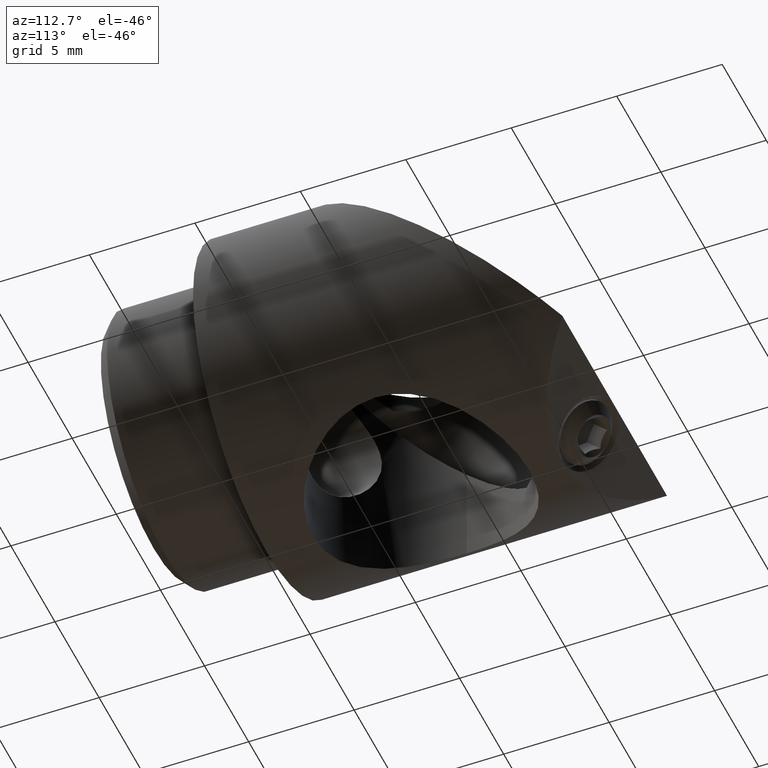
[diagram: clean part render]
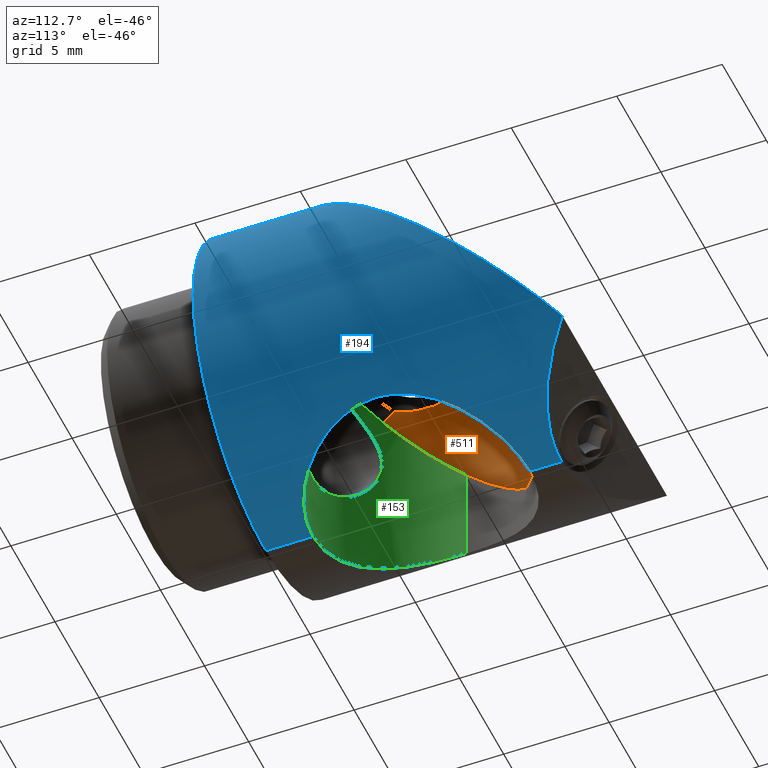
[diagram: same view with three faces highlighted in distinct colors, each labeled with its STEP entity id]
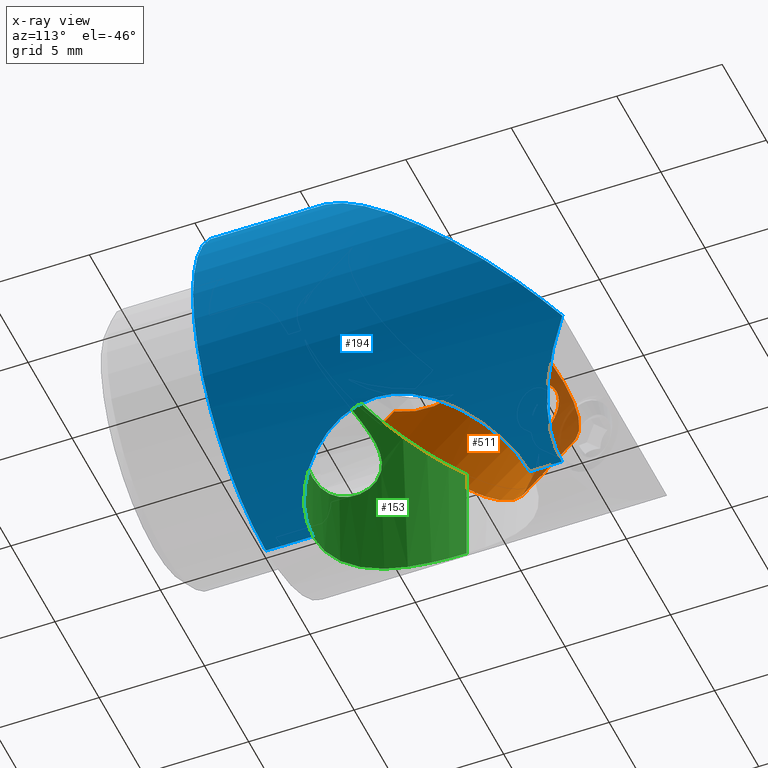
[diagram: x-ray of the same camera — body ghosted, the three highlighted faces saturated]
A machine part, auxiliary view with three faces highlighted in distinct colors.
The next image is the same camera in x-ray (body ghosted, the three faces saturated) — at least one of them is partly hidden behind the body in this view.
Their STEP definitions:

[orange] entity #511 — the highlighted cylindrical surface (partial cylindrical patch) has radius 6.388 mm, axis along (-0, 0.7071, 0.7071).
#10 = CARTESIAN_POINT ( 'NONE',  ( 1.640175163913572431, 12.27249593161689667, -4.940702873510235626 ) ) ;
#13 = CARTESIAN_POINT ( 'NONE',  ( -1.367120341127874283, 12.33214604321978491, -4.948413358188406441 ) ) ;
#30 = VERTEX_POINT ( 'NONE', #1424 ) ;
#44 = VECTOR ( 'NONE', #294, 1000.000000000000000 ) ;
#51 = LINE ( 'NONE', #447, #1079 ) ;
#53 = CARTESIAN_POINT ( 'NONE',  ( 4.161951651678083230, 4.343790427668178467, 2.749807714130376723 ) ) ;
#61 = EDGE_CURVE ( 'NONE', #610, #155, #923, .T. ) ;
#64 = CARTESIAN_POINT ( 'NONE',  ( -1.253909884520350237, 12.65672326343202769, -4.648929518578366782 ) ) ;
#115 = CIRCLE ( 'NONE', #769, 6.387999999999999012 ) ;
#133 = CARTESIAN_POINT ( 'NONE',  ( 3.892938429126236777, 10.72763987319167711, -4.882387341497614663 ) ) ;
#135 = CARTESIAN_POINT ( 'NONE',  ( 5.108716719711978271, 6.768835259132526261, 3.745000000000000107 ) ) ;
#146 = ORIENTED_EDGE ( 'NONE', *, *, #913, .F. ) ;
#151 = B_SPLINE_CURVE_WITH_KNOTS ( 'NONE', 3,
 ( #133, #1444, #651, #540, #10, #414 ),
 .UNSPECIFIED., .F., .F.,
 ( 4, 2, 4 ),
 ( 5.553824967135426632E-18, 0.001647709144781099458, 0.003295418289562193279 ),
 .UNSPECIFIED. ) ;
#155 = VERTEX_POINT ( 'NONE', #672 ) ;
#176 = VECTOR ( 'NONE', #988, 1000.000000000000000 ) ;
#179 = CARTESIAN_POINT ( 'NONE',  ( -1.200186646161037762, 12.51136629610085649, -4.810374407719964829 ) ) ;
#181 = CARTESIAN_POINT ( 'NONE',  ( 0.8048097720602422900, 13.54000422560821093, -3.873318973076294025 ) ) ;
#183 = CARTESIAN_POINT ( 'NONE',  ( 5.108716719711978271, 6.768835259132526261, 3.745000000000000107 ) ) ;
#186 = CARTESIAN_POINT ( 'NONE',  ( -4.896850738249568735, 5.776427042986947313, 3.132758512196308853 ) ) ;
#188 = CARTESIAN_POINT ( 'NONE',  ( 0.5254475664978317528, 13.67171505592000180, -3.780045286826354545 ) ) ;
#191 = CARTESIAN_POINT ( 'NONE',  ( 4.513600299552082085, 5.766081610168910743, 3.745000000000000107 ) ) ;
#193 = B_SPLINE_CURVE_WITH_KNOTS ( 'NONE', 3,
 ( #1125, #437, #1619, #212, #188, #181, #1481, #1386, #698, #1641, #454, #730, #461, #831 ),
 .UNSPECIFIED., .F., .F.,
 ( 4, 2, 2, 2, 2, 2, 4 ),
 ( 1.624226609785692117E-19, 0.0003224702730896096764, 0.0006449405461792192444, 0.001289881092358441091, 0.001612351365448052827, 0.001934821638537664781, 0.002579762184716888687 ),
 .UNSPECIFIED. ) ;
#197 = DIRECTION ( 'NONE',  ( 0.000000000000000000, 0.7071067811865511255, 0.7071067811865440200 ) ) ;
#212 = CARTESIAN_POINT ( 'NONE',  ( 0.4241497211968454639, 13.70653400599343819, -3.756140281013160998 ) ) ;
#246 = CARTESIAN_POINT ( 'NONE',  ( -4.161951651678085895, 6.194491356768897283, 4.600508643231069783 ) ) ;
#257 = CARTESIAN_POINT ( 'NONE',  ( -4.161951651678085895, 5.338982713537819613, 3.745000000000000107 ) ) ;
#265 = CARTESIAN_POINT ( 'NONE',  ( 3.892938429126236777, 10.72763987319167711, -4.882387341497614663 ) ) ;
#272 = VERTEX_POINT ( 'NONE', #1104 ) ;
#287 = EDGE_CURVE ( 'NONE', #610, #1521, #1445, .T. ) ;
#294 = DIRECTION ( 'NONE',  ( -0.000000000000000000, 0.7071067811865511255, 0.7071067811865440200 ) ) ;
#301 = ORIENTED_EDGE ( 'NONE', *, *, #713, .F. ) ;
#303 = EDGE_CURVE ( 'NONE', #837, #586, #115, .T. ) ;
#309 = CARTESIAN_POINT ( 'NONE',  ( -5.108716719711980048, 6.768835259132539584, 3.745000000000000107 ) ) ;
#312 = VECTOR ( 'NONE', #1199, 1000.000000000000000 ) ;
#315 = CARTESIAN_POINT ( 'NONE',  ( -4.958181710620769067, 5.982317699541248146, 3.232070925650737170 ) ) ;
#350 = CARTESIAN_POINT ( 'NONE',  ( 4.161951651678083230, 3.719617622615964958, 2.125634909078168988 ) ) ;
#360 = CARTESIAN_POINT ( 'NONE',  ( 4.739740051454058190, 5.355834389575567123, 2.967422409816603768 ) ) ;
#372 = CARTESIAN_POINT ( 'NONE',  ( -4.830433706001754146, 6.244579463582841328, 3.745000000000000107 ) ) ;
#381 = CARTESIAN_POINT ( 'NONE',  ( 5.086708019740235898, 6.580551849496817596, 3.598178655759059819 ) ) ;
#400 = CYLINDRICAL_SURFACE ( 'NONE', #1159, 6.387999999999999012 ) ;
#414 = CARTESIAN_POINT ( 'NONE',  ( 1.097733773728120088, 12.39099480716314972, -4.956020259173528508 ) ) ;
#428 = CARTESIAN_POINT ( 'NONE',  ( 4.161951651678082342, 6.194491356768891954, 4.600508643231070671 ) ) ;
#437 = CARTESIAN_POINT ( 'NONE',  ( 0.1090576367608548369, 13.76484852452993835, -3.716553285463090273 ) ) ;
#447 = CARTESIAN_POINT ( 'NONE',  ( -4.161951651678085895, 3.719617622615968511, 2.125634909078165435 ) ) ;
#451 =( BOUNDED_CURVE ( )  B_SPLINE_CURVE ( 3, ( #257, #1162, #372, #1008 ),
 .UNSPECIFIED., .F., .F. ) 
 B_SPLINE_CURVE_WITH_KNOTS ( ( 4, 4 ),
 ( 3.851187623086043565, 4.068448822386908859 ),
 .UNSPECIFIED. ) 
 CURVE ( )  GEOMETRIC_REPRESENTATION_ITEM ( )  RATIONAL_B_SPLINE_CURVE ( ( 1.000000000000000000, 0.9960703309277840756, 0.9960703309277840756, 1.000000000000000000 ) ) 
 REPRESENTATION_ITEM ( '' )  );
#452 = CARTESIAN_POINT ( 'NONE',  ( -0.2180226796108265253, 13.76484852452993302, -3.716553285463089384 ) ) ;
#453 = ORIENTED_EDGE ( 'NONE', *, *, #287, .T. ) ;
#454 = CARTESIAN_POINT ( 'NONE',  ( 1.247656084778585805, 12.88730795460118905, -4.420109232909160468 ) ) ;
#461 = CARTESIAN_POINT ( 'NONE',  ( 1.200821522805505692, 12.51211221024822784, -4.809471874220849763 ) ) ;
#474 = EDGE_CURVE ( 'NONE', #1093, #667, #451, .T. ) ;
#476 = VERTEX_POINT ( 'NONE', #246 ) ;
#486 = CARTESIAN_POINT ( 'NONE',  ( 5.108716719711978271, 6.768835259132526261, 3.745000000000000107 ) ) ;
#511 = ADVANCED_FACE ( 'NONE', ( #670 ), #400, .F. ) ;
#527 = CARTESIAN_POINT ( 'NONE',  ( -3.710979667386285819, 10.93835675031544241, -4.869462360018762759 ) ) ;
#529 = DIRECTION ( 'NONE',  ( 0.000000000000000000, 0.7071067811865511255, 0.7071067811865440200 ) ) ;
#531 = CARTESIAN_POINT ( 'NONE',  ( 4.646363924258364975, 5.147757095504806202, 2.903881556768844519 ) ) ;
#533 = ORIENTED_EDGE ( 'NONE', *, *, #1494, .T. ) ;
#540 = CARTESIAN_POINT ( 'NONE',  ( 2.152567356997935555, 12.07035688233090553, -4.914930836176590212 ) ) ;
#541 = CARTESIAN_POINT ( 'NONE',  ( -2.141398041436715527, 12.05061637847345146, -4.916491907531206351 ) ) ;
#561 = CARTESIAN_POINT ( 'NONE',  ( 4.161951651678083230, 5.338982713537813396, 3.745000000000000107 ) ) ;
#563 = CARTESIAN_POINT ( 'NONE',  ( 4.428049839703702695, 4.738896287336016755, 2.806544785728690261 ) ) ;
#575 = CARTESIAN_POINT ( 'NONE',  ( -4.426632995662383330, 4.736513237974952162, 2.806091152410513878 ) ) ;
#584 = CARTESIAN_POINT ( 'NONE',  ( -5.086695192232864038, 6.580442110759808116, 3.598093082692386702 ) ) ;
#586 = VERTEX_POINT ( 'NONE', #1207 ) ;
#595 = CARTESIAN_POINT ( 'NONE',  ( 2.649184241953760576E-15, 9.621202786776814619, 1.173797213223117808 ) ) ;
#603 = CARTESIAN_POINT ( 'NONE',  ( 4.161951651678083230, 3.719617622615964958, 2.125634909078168988 ) ) ;
#610 = VERTEX_POINT ( 'NONE', #135 ) ;
#625 = CARTESIAN_POINT ( 'NONE',  ( -4.161951651678085895, 5.338982713537819613, 3.745000000000000107 ) ) ;
#641 = EDGE_CURVE ( 'NONE', #1245, #1181, #1621, .T. ) ;
#648 = CARTESIAN_POINT ( 'NONE',  ( 4.896733116203749070, 5.776060905139988044, 3.132592310715894612 ) ) ;
#651 = CARTESIAN_POINT ( 'NONE',  ( 3.107856827162439828, 11.50190931290896046, -4.872978575835780646 ) ) ;
#658 = ORIENTED_EDGE ( 'NONE', *, *, #693, .T. ) ;
#665 = LINE ( 'NONE', #928, #312 ) ;
#666 = CARTESIAN_POINT ( 'NONE',  ( 4.302291016803429180, 4.537054871612139273, 2.772621373288949531 ) ) ;
#667 = VERTEX_POINT ( 'NONE', #309 ) ;
#670 = FACE_OUTER_BOUND ( 'NONE', #1516, .T. ) ;
#672 = CARTESIAN_POINT ( 'NONE',  ( 4.161951651678083230, 4.343790427668178467, 2.749807714130376723 ) ) ;
#687 = EDGE_CURVE ( 'NONE', #871, #476, #741, .T. ) ;
#689 = ORIENTED_EDGE ( 'NONE', *, *, #303, .F. ) ;
#693 = EDGE_CURVE ( 'NONE', #1185, #30, #193, .T. ) ;
#698 = CARTESIAN_POINT ( 'NONE',  ( 1.172025885608741103, 13.12099408406917611, -4.207156523315444652 ) ) ;
#701 = CARTESIAN_POINT ( 'NONE',  ( 2.649184241953760576E-15, 7.146329052623886291, -1.301076520929786318 ) ) ;
#709 = DIRECTION ( 'NONE',  ( 0.000000000000000000, 0.7071067811865511255, 0.7071067811865440200 ) ) ;
#711 = ORIENTED_EDGE ( 'NONE', *, *, #1056, .T. ) ;
#713 = EDGE_CURVE ( 'NONE', #1093, #476, #51, .T. ) ;
#730 = CARTESIAN_POINT ( 'NONE',  ( 1.253969873451666883, 12.65829690921597539, -4.647338959256609670 ) ) ;
#741 = CIRCLE ( 'NONE', #1592, 6.387999999999999012 ) ;
#745 = ORIENTED_EDGE ( 'NONE', *, *, #61, .F. ) ;
#769 = AXIS2_PLACEMENT_3D ( 'NONE', #701, #709, #1252 ) ;
#804 = CARTESIAN_POINT ( 'NONE',  ( -1.629690741564836731, 12.25223825372736641, -4.938434536719461754 ) ) ;
#819 = CARTESIAN_POINT ( 'NONE',  ( -1.097733773728121198, 12.39099480716315149, -4.956020259173525844 ) ) ;
#827 = CARTESIAN_POINT ( 'NONE',  ( -4.739910310771103141, 5.356238923601027935, 2.967559161521424738 ) ) ;
#831 = CARTESIAN_POINT ( 'NONE',  ( 1.097733773728120088, 12.39099480716314972, -4.956020259173528508 ) ) ;
#837 = VERTEX_POINT ( 'NONE', #933 ) ;
#846 = CARTESIAN_POINT ( 'NONE',  ( 4.830433706001752370, 6.244579463582829781, 3.745000000000000107 ) ) ;
#871 = VERTEX_POINT ( 'NONE', #428 ) ;
#906 = B_SPLINE_CURVE_WITH_KNOTS ( 'NONE', 3,
 ( #1567, #13, #804, #541, #1070, #915, #1055, #1589, #527, #1196 ),
 .UNSPECIFIED., .F., .F.,
 ( 4, 2, 2, 2, 4 ),
 ( 0.005495432455594205338, 0.006319065893105949884, 0.007142699330617693562, 0.007966332768129438108, 0.008789966205641182653 ),
 .UNSPECIFIED. ) ;
#911 = CARTESIAN_POINT ( 'NONE',  ( 4.958905199174284739, 5.984932966629985529, 3.233421385622098132 ) ) ;
#913 = EDGE_CURVE ( 'NONE', #272, #837, #906, .T. ) ;
#915 = CARTESIAN_POINT ( 'NONE',  ( -2.866959145208740178, 11.64528621078993709, -4.883556423912430944 ) ) ;
#923 = B_SPLINE_CURVE_WITH_KNOTS ( 'NONE', 3,
 ( #486, #381, #1536, #911, #648, #360, #531, #563, #666, #53 ),
 .UNSPECIFIED., .F., .F.,
 ( 4, 2, 2, 2, 4 ),
 ( 2.676552404054766205E-17, 0.0007098968692407624931, 0.001419793738481498098, 0.002129690607722234136, 0.002839587476962969741 ),
 .UNSPECIFIED. ) ;
#928 = CARTESIAN_POINT ( 'NONE',  ( 4.161951651678083230, 3.719617622615964958, 2.125634909078168988 ) ) ;
#933 = CARTESIAN_POINT ( 'NONE',  ( -3.892938429126241662, 10.72763987319167178, -4.882387341497609334 ) ) ;
#957 = CARTESIAN_POINT ( 'NONE',  ( 2.649184241953760576E-15, 7.146329052623886291, -1.301076520929786318 ) ) ;
#968 = ORIENTED_EDGE ( 'NONE', *, *, #1205, .F. ) ;
#969 = AXIS2_PLACEMENT_3D ( 'NONE', #957, #529, #1350 ) ;
#988 = DIRECTION ( 'NONE',  ( -0.000000000000000000, 0.7071067811865511255, 0.7071067811865440200 ) ) ;
#992 = CARTESIAN_POINT ( 'NONE',  ( -5.053063622555008294, 6.383813352489271509, 3.464322954883077177 ) ) ;
#997 = LINE ( 'NONE', #603, #176 ) ;
#1008 = CARTESIAN_POINT ( 'NONE',  ( -5.108716719711980048, 6.768835259132539584, 3.745000000000000107 ) ) ;
#1041 = EDGE_CURVE ( 'NONE', #1611, #667, #1681, .T. ) ;
#1046 = DIRECTION ( 'NONE',  ( -0.000000000000000000, 0.7071067811865511255, 0.7071067811865440200 ) ) ;
#1055 = CARTESIAN_POINT ( 'NONE',  ( -3.090805819065892024, 11.48644294405140620, -4.874756510101351914 ) ) ;
#1056 = EDGE_CURVE ( 'NONE', #272, #1185, #1561, .T. ) ;
#1070 = CARTESIAN_POINT ( 'NONE',  ( -2.392636090812561900, 11.92747319964658992, -4.904389394357606236 ) ) ;
#1079 = VECTOR ( 'NONE', #1635, 1000.000000000000000 ) ;
#1092 = CARTESIAN_POINT ( 'NONE',  ( -5.108716719711980048, 6.768835259132539584, 3.745000000000000107 ) ) ;
#1093 = VERTEX_POINT ( 'NONE', #625 ) ;
#1100 = CARTESIAN_POINT ( 'NONE',  ( -0.9650360543801383972, 13.41172396143105949, -3.967378980629855612 ) ) ;
#1104 = CARTESIAN_POINT ( 'NONE',  ( -1.097733773728121198, 12.39099480716315149, -4.956020259173525844 ) ) ;
#1109 = CARTESIAN_POINT ( 'NONE',  ( -1.245634576152562234, 12.96437046816346417, -4.343617061927455225 ) ) ;
#1116 = CARTESIAN_POINT ( 'NONE',  ( -1.184214107843533315, 13.12443224671445918, -4.201772848659433457 ) ) ;
#1125 = CARTESIAN_POINT ( 'NONE',  ( -7.194117245937691693E-31, 13.76484852452993302, -3.716553285463090717 ) ) ;
#1159 = AXIS2_PLACEMENT_3D ( 'NONE', #1325, #1046, #1583 ) ;
#1162 = CARTESIAN_POINT ( 'NONE',  ( -4.513600299552083861, 5.766081610168920513, 3.745000000000000107 ) ) ;
#1179 = ORIENTED_EDGE ( 'NONE', *, *, #474, .T. ) ;
#1180 = EDGE_CURVE ( 'NONE', #1181, #30, #151, .T. ) ;
#1181 = VERTEX_POINT ( 'NONE', #265 ) ;
#1185 = VERTEX_POINT ( 'NONE', #1319 ) ;
#1196 = CARTESIAN_POINT ( 'NONE',  ( -3.892938429126241662, 10.72763987319167178, -4.882387341497609334 ) ) ;
#1199 = DIRECTION ( 'NONE',  ( -0.000000000000000000, 0.7071067811865511255, 0.7071067811865440200 ) ) ;
#1205 = EDGE_CURVE ( 'NONE', #586, #1611, #1402, .T. ) ;
#1207 = CARTESIAN_POINT ( 'NONE',  ( -4.161951651678085895, 3.719617622615968511, 2.125634909078165435 ) ) ;
#1232 = CARTESIAN_POINT ( 'NONE',  ( -0.8059642197614763637, 13.53935949443449260, -3.873781726735442632 ) ) ;
#1241 = ORIENTED_EDGE ( 'NONE', *, *, #1041, .F. ) ;
#1245 = VERTEX_POINT ( 'NONE', #350 ) ;
#1247 = CARTESIAN_POINT ( 'NONE',  ( -4.645131818174918159, 5.145182424932011500, 2.903156285615707155 ) ) ;
#1252 = DIRECTION ( 'NONE',  ( 0.000000000000000000, -0.7071067811865441310, 0.7071067811865510144 ) ) ;
#1254 = CARTESIAN_POINT ( 'NONE',  ( -7.194117245937691693E-31, 13.76484852452993302, -3.716553285463090717 ) ) ;
#1260 = ORIENTED_EDGE ( 'NONE', *, *, #641, .F. ) ;
#1318 = ORIENTED_EDGE ( 'NONE', *, *, #1180, .F. ) ;
#1319 = CARTESIAN_POINT ( 'NONE',  ( -7.194117245937691693E-31, 13.76484852452993302, -3.716553285463090717 ) ) ;
#1325 = CARTESIAN_POINT ( 'NONE',  ( 2.649184241953760576E-15, 7.146329052623886291, -1.301076520929786318 ) ) ;
#1350 = DIRECTION ( 'NONE',  ( 0.000000000000000000, -0.7071067811865441310, 0.7071067811865510144 ) ) ;
#1386 = CARTESIAN_POINT ( 'NONE',  ( 1.129535570175497883, 13.19618643040793238, -4.143219556453877850 ) ) ;
#1402 = LINE ( 'NONE', #1616, #44 ) ;
#1424 = CARTESIAN_POINT ( 'NONE',  ( 1.097733773728120088, 12.39099480716314972, -4.956020259173528508 ) ) ;
#1444 = CARTESIAN_POINT ( 'NONE',  ( 3.528822039943138922, 11.14930392335649678, -4.856523252616478104 ) ) ;
#1445 =( BOUNDED_CURVE ( )  B_SPLINE_CURVE ( 3, ( #183, #846, #191, #1642 ),
 .UNSPECIFIED., .F., .T. ) 
 B_SPLINE_CURVE_WITH_KNOTS ( ( 4, 4 ),
 ( 2.214736484792679594, 2.431997684093544443 ),
 .UNSPECIFIED. ) 
 CURVE ( )  GEOMETRIC_REPRESENTATION_ITEM ( )  RATIONAL_B_SPLINE_CURVE ( ( 1.000000000000000000, 0.9960703309277840756, 0.9960703309277840756, 1.000000000000000000 ) ) 
 REPRESENTATION_ITEM ( '' )  );
#1481 = CARTESIAN_POINT ( 'NONE',  ( 0.9637625398497225993, 13.41322591204235160, -3.966175506169188569 ) ) ;
#1490 = CARTESIAN_POINT ( 'NONE',  ( -4.302255698609288359, 4.537006234145790629, 2.772615631939895131 ) ) ;
#1494 = EDGE_CURVE ( 'NONE', #1245, #155, #665, .T. ) ;
#1497 = CARTESIAN_POINT ( 'NONE',  ( -4.161951651678089448, 4.343790427668187348, 2.749807714130370506 ) ) ;
#1516 = EDGE_LOOP ( 'NONE', ( #146, #711, #658, #1318, #1260, #533, #745, #453, #1607, #1562, #301, #1179, #1241, #968, #689 ) ) ;
#1517 = DIRECTION ( 'NONE',  ( 0.000000000000000000, -0.7071067811865441310, 0.7071067811865510144 ) ) ;
#1521 = VERTEX_POINT ( 'NONE', #561 ) ;
#1536 = CARTESIAN_POINT ( 'NONE',  ( 5.053524029950334118, 6.386213388653547263, 3.465875724990594264 ) ) ;
#1561 = B_SPLINE_CURVE_WITH_KNOTS ( 'NONE', 3,
 ( #819, #179, #64, #1109, #1116, #1100, #1232, #1617, #452, #1254 ),
 .UNSPECIFIED., .F., .F.,
 ( 4, 2, 2, 2, 4 ),
 ( 0.005255394336036671617, 0.005900061093193723419, 0.006544727850350776088, 0.007189394607507827890, 0.007834061364664879692 ),
 .UNSPECIFIED. ) ;
#1562 = ORIENTED_EDGE ( 'NONE', *, *, #687, .T. ) ;
#1567 = CARTESIAN_POINT ( 'NONE',  ( -1.097733773728121198, 12.39099480716315149, -4.956020259173525844 ) ) ;
#1583 = DIRECTION ( 'NONE',  ( 0.000000000000000000, -0.7071067811865441310, 0.7071067811865510144 ) ) ;
#1589 = CARTESIAN_POINT ( 'NONE',  ( -3.512303129775163679, 11.13360632111771942, -4.867721958956972017 ) ) ;
#1592 = AXIS2_PLACEMENT_3D ( 'NONE', #595, #197, #1517 ) ;
#1594 = CARTESIAN_POINT ( 'NONE',  ( -4.161951651678089448, 4.343790427668187348, 2.749807714130370506 ) ) ;
#1607 = ORIENTED_EDGE ( 'NONE', *, *, #1688, .T. ) ;
#1611 = VERTEX_POINT ( 'NONE', #1594 ) ;
#1616 = CARTESIAN_POINT ( 'NONE',  ( -4.161951651678085895, 3.719617622615968511, 2.125634909078165435 ) ) ;
#1617 = CARTESIAN_POINT ( 'NONE',  ( -0.4322737891574366387, 13.71574382222228472, -3.748859270096484675 ) ) ;
#1619 = CARTESIAN_POINT ( 'NONE',  ( 0.2156632468653134072, 13.75295492762700178, -3.724503507103563926 ) ) ;
#1621 = CIRCLE ( 'NONE', #969, 6.387999999999999012 ) ;
#1635 = DIRECTION ( 'NONE',  ( -0.000000000000000000, 0.7071067811865511255, 0.7071067811865440200 ) ) ;
#1641 = CARTESIAN_POINT ( 'NONE',  ( 1.231503776480894041, 12.96596467662564933, -4.346073918436212935 ) ) ;
#1642 = CARTESIAN_POINT ( 'NONE',  ( 4.161951651678083230, 5.338982713537813396, 3.745000000000000107 ) ) ;
#1681 = B_SPLINE_CURVE_WITH_KNOTS ( 'NONE', 3,
 ( #1497, #1490, #575, #1247, #827, #186, #315, #992, #584, #1092 ),
 .UNSPECIFIED., .F., .F.,
 ( 4, 2, 2, 2, 4 ),
 ( 0.000000000000000000, 0.0007101406579237174062, 0.001420281315847434812, 0.002130421973771152219, 0.002840562631694869625 ),
 .UNSPECIFIED. ) ;
#1688 = EDGE_CURVE ( 'NONE', #1521, #871, #997, .T. ) ;

[blue] entity #194 — the highlighted cylindrical surface (partial cylindrical patch) has radius 8.255 mm, axis along (-0, -1, -0).
#36 = DIRECTION ( 'NONE',  ( 0.000000000000000000, 0.000000000000000000, -1.000000000000000000 ) ) ;
#67 = CARTESIAN_POINT ( 'NONE',  ( 0.3498619525357296034, 2.231489146023770243, -8.249390549262360040 ) ) ;
#79 = EDGE_LOOP ( 'NONE', ( #160, #834, #841, #697, #184, #813, #650, #761 ) ) ;
#81 = CARTESIAN_POINT ( 'NONE',  ( 1.689604822720227828, 2.495964798275995822, -8.086729199776112154 ) ) ;
#105 = CARTESIAN_POINT ( 'NONE',  ( 5.931774102239412372, 16.53600000000000136, -5.741000000000172854 ) ) ;
#123 = CARTESIAN_POINT ( 'NONE',  ( 5.134498506289006059, 7.715830933470377850, -6.463934493890955757 ) ) ;
#130 = CARTESIAN_POINT ( 'NONE',  ( -5.962151190919923481E-17, 12.50950000000000095, -8.255000000000000782 ) ) ;
#149 = DIRECTION ( 'NONE',  ( -0.000000000000000000, -1.000000000000000000, -0.000000000000000000 ) ) ;
#160 = ORIENTED_EDGE ( 'NONE', *, *, #649, .F. ) ;
#184 = ORIENTED_EDGE ( 'NONE', *, *, #1674, .F. ) ;
#189 = CARTESIAN_POINT ( 'NONE',  ( 0.6945558770364002044, 2.266666981937145220, -8.227541549804866960 ) ) ;
#194 = ADVANCED_FACE ( 'NONE', ( #1474 ), #1328, .T. ) ;
#213 = CARTESIAN_POINT ( 'NONE',  ( 5.005546144066427949, 6.170339298623518154, -6.564404721560185507 ) ) ;
#232 = CARTESIAN_POINT ( 'NONE',  ( 2.609697961171371094, 11.81082934210042090, -7.837186220355983224 ) ) ;
#233 = VERTEX_POINT ( 'NONE', #840 ) ;
#247 = CARTESIAN_POINT ( 'NONE',  ( 0.000000000000000000, 30.00000000000000000, -8.255000000000000782 ) ) ;
#249 = AXIS2_PLACEMENT_3D ( 'NONE', #1209, #149, #36 ) ;
#275 = CARTESIAN_POINT ( 'NONE',  ( 5.688456862632121891E-15, 2.222499999999918874, -8.255000000000050520 ) ) ;
#298 = CARTESIAN_POINT ( 'NONE',  ( 0.000000000000000000, 30.00000000000000000, -8.255000000000000782 ) ) ;
#325 = CARTESIAN_POINT ( 'NONE',  ( 4.609069704633074416, 5.058644605750842516, -6.850306606611403559 ) ) ;
#330 = CARTESIAN_POINT ( 'NONE',  ( 8.537846587272611032, 2.540000000000001368, 8.255000000000000782 ) ) ;
#339 = VERTEX_POINT ( 'NONE', #571 ) ;
#340 = CARTESIAN_POINT ( 'NONE',  ( 5.931774102239412372, 16.53600000000000136, -5.741000000000172854 ) ) ;
#341 = CARTESIAN_POINT ( 'NONE',  ( 5.143499999999998629, 7.017555844101674545, -6.456735456095439751 ) ) ;
#358 = CARTESIAN_POINT ( 'NONE',  ( 2.316968824959476425, 11.97044612238429728, -7.929634839983975780 ) ) ;
#373 = CARTESIAN_POINT ( 'NONE',  ( 4.970639386079074740, 8.731731432066869303, -6.591301218963530495 ) ) ;
#391 =( BOUNDED_CURVE ( )  B_SPLINE_CURVE ( 3, ( #105, #492, #760, #1293 ),
 .UNSPECIFIED., .F., .T. ) 
 B_SPLINE_CURVE_WITH_KNOTS ( ( 4, 4 ),
 ( 5.481445088553501321, 6.283185307179586232 ),
 .UNSPECIFIED. ) 
 CURVE ( )  GEOMETRIC_REPRESENTATION_ITEM ( )  RATIONAL_B_SPLINE_CURVE ( ( 1.000000000000000000, 0.9471478725708106783, 0.9471478725708106783, 1.000000000000000000 ) ) 
 REPRESENTATION_ITEM ( '' )  );
#433 = VERTEX_POINT ( 'NONE', #1432 ) ;
#448 = B_SPLINE_CURVE_WITH_KNOTS ( 'NONE', 3,
 ( #1377, #341, #1493, #213, #1235, #708, #1007, #325, #976, #570, #468, #1369, #731, #1251, #1525, #81, #1620, #1265, #189, #67, #845, #1636 ),
 .UNSPECIFIED., .F., .F.,
 ( 4, 2, 2, 2, 2, 2, 2, 2, 2, 2, 4 ),
 ( 0.008272891818243440984, 0.009306542652157637902, 0.009823368069114737228, 0.01034019348607183482, 0.01137384431998603174, 0.01240749515390022692, 0.01344114598781442210, 0.01447479682172861902, 0.01550844765564281247, 0.01602527307259991179, 0.01654209848955700765 ),
 .UNSPECIFIED. ) ;
#468 = CARTESIAN_POINT ( 'NONE',  ( 3.874379055558886620, 3.967013000616368856, -7.293921198400482808 ) ) ;
#483 = LINE ( 'NONE', #1013, #995 ) ;
#492 = CARTESIAN_POINT ( 'NONE',  ( 4.354934205719422913, 14.90676152907947838, -7.370238470920712714 ) ) ;
#501 = CARTESIAN_POINT ( 'NONE',  ( 4.451923794970120696, 9.962832973268033854, -6.954932750820301379 ) ) ;
#505 = DIRECTION ( 'NONE',  ( 0.000000000000000000, 1.000000000000000000, 0.000000000000000000 ) ) ;
#524 = EDGE_CURVE ( 'NONE', #879, #433, #1448, .T. ) ;
#526 = VECTOR ( 'NONE', #893, 1000.000000000000000 ) ;
#537 = CARTESIAN_POINT ( 'NONE',  ( 1.010945932696140139E-15, 2.540000000000000480, 8.255000000000000782 ) ) ;
#560 = CARTESIAN_POINT ( 'NONE',  ( 11.86948182574436572, 10.40098155357042486, 0.3940184464294944622 ) ) ;
#570 = CARTESIAN_POINT ( 'NONE',  ( 4.081678814767512264, 4.219033630759421172, -7.178502720593039399 ) ) ;
#571 = CARTESIAN_POINT ( 'NONE',  ( 1.010945932696140139E-15, 0.000000000000000000, 8.255000000000000782 ) ) ;
#577 = VERTEX_POINT ( 'NONE', #537 ) ;
#615 = CARTESIAN_POINT ( 'NONE',  ( 0.6929426497475636992, 12.47411692706265640, -8.232822853794782958 ) ) ;
#623 = CARTESIAN_POINT ( 'NONE',  ( 3.414693781270043083, 11.22633069268235140, -7.520030766815589907 ) ) ;
#640 = CARTESIAN_POINT ( 'NONE',  ( 5.143500000000002181, 7.540299719490964669, -6.456735456095442416 ) ) ;
#647 = CARTESIAN_POINT ( 'NONE',  ( 1.696077269108522634, 12.23350352100410099, -8.085219547330501300 ) ) ;
#649 = EDGE_CURVE ( 'NONE', #577, #1634, #1683, .T. ) ;
#650 = ORIENTED_EDGE ( 'NONE', *, *, #1391, .F. ) ;
#674 = VERTEX_POINT ( 'NONE', #1112 ) ;
#690 = DIRECTION ( 'NONE',  ( -0.000000000000000000, -1.000000000000000000, -0.000000000000000000 ) ) ;
#697 = ORIENTED_EDGE ( 'NONE', *, *, #524, .F. ) ;
#708 = CARTESIAN_POINT ( 'NONE',  ( 4.861834117976343350, 5.678699238100842983, -6.671695252080485083 ) ) ;
#731 = CARTESIAN_POINT ( 'NONE',  ( 3.154933108601059022, 3.290436311343674092, -7.633869931240446327 ) ) ;
#760 = CARTESIAN_POINT ( 'NONE',  ( 2.267342509279242968, 14.02200000000019386, -8.255000000000000782 ) ) ;
#761 = ORIENTED_EDGE ( 'NONE', *, *, #1425, .F. ) ;
#764 = DIRECTION ( 'NONE',  ( -0.000000000000000000, -1.000000000000000000, -0.000000000000000000 ) ) ;
#805 = VERTEX_POINT ( 'NONE', #1658 ) ;
#811 = EDGE_CURVE ( 'NONE', #577, #339, #483, .T. ) ;
#813 = ORIENTED_EDGE ( 'NONE', *, *, #1429, .F. ) ;
#832 = EDGE_CURVE ( 'NONE', #339, #433, #1108, .T. ) ;
#834 = ORIENTED_EDGE ( 'NONE', *, *, #811, .T. ) ;
#840 = CARTESIAN_POINT ( 'NONE',  ( -5.962151190919923481E-17, 12.50950000000000095, -8.255000000000000782 ) ) ;
#841 = ORIENTED_EDGE ( 'NONE', *, *, #832, .T. ) ;
#845 = CARTESIAN_POINT ( 'NONE',  ( 0.1738208746249765846, 2.222499999999991704, -8.255000000000006111 ) ) ;
#879 = VERTEX_POINT ( 'NONE', #275 ) ;
#893 = DIRECTION ( 'NONE',  ( -0.000000000000000000, -1.000000000000000000, -0.000000000000000000 ) ) ;
#901 = CARTESIAN_POINT ( 'NONE',  ( 5.073412679975520589, 8.229306161745419956, -6.512094858419316346 ) ) ;
#976 = CARTESIAN_POINT ( 'NONE',  ( 4.448849487069090891, 4.763839836317094623, -6.956920403302649270 ) ) ;
#995 = VECTOR ( 'NONE', #764, 1000.000000000000000 ) ;
#1007 = CARTESIAN_POINT ( 'NONE',  ( 4.804036574197215970, 5.520795432571288686, -6.713609862098262937 ) ) ;
#1013 = CARTESIAN_POINT ( 'NONE',  ( 1.010945932696140139E-15, 30.00000000000000000, 8.255000000000000782 ) ) ;
#1025 = CARTESIAN_POINT ( 'NONE',  ( 0.3502221348591077477, 12.50950000000000273, -8.255000000000000782 ) ) ;
#1037 = DIRECTION ( 'NONE',  ( 0.000000000000000000, 0.000000000000000000, 1.000000000000000000 ) ) ;
#1084 = B_SPLINE_CURVE_WITH_KNOTS ( 'NONE', 3,
 ( #130, #1025, #615, #1535, #647, #358, #232, #1163, #623, #1678, #1546, #501, #1178, #1554, #373, #901, #1423, #123, #640, #1584 ),
 .UNSPECIFIED., .F., .F.,
 ( 4, 2, 2, 2, 2, 2, 2, 2, 2, 4 ),
 ( 3.150089603810512725E-19, 0.001034111477280428822, 0.002068222954560857644, 0.003102334431841286683, 0.004136445909121717023, 0.005170557386402147362, 0.006204668863682576835, 0.007238780340963008042, 0.007755836079603226248, 0.008272891818243440984 ),
 .UNSPECIFIED. ) ;
#1108 = CIRCLE ( 'NONE', #1486, 8.255000000000000782 ) ;
#1112 = CARTESIAN_POINT ( 'NONE',  ( 5.143500000000003070, 7.365999999999981895, -6.456735456095454850 ) ) ;
#1163 = CARTESIAN_POINT ( 'NONE',  ( 3.162343545281818713, 11.43621063712349617, -7.630962888305389491 ) ) ;
#1168 = CARTESIAN_POINT ( 'NONE',  ( 0.000000000000000000, 0.000000000000000000, 0.000000000000000000 ) ) ;
#1178 = CARTESIAN_POINT ( 'NONE',  ( 4.608368251579562980, 9.674567020273132201, -6.850768295162080967 ) ) ;
#1209 = CARTESIAN_POINT ( 'NONE',  ( 0.000000000000000000, 30.00000000000000000, 0.000000000000000000 ) ) ;
#1235 = CARTESIAN_POINT ( 'NONE',  ( 4.962516704724841965, 6.002972925011687444, -6.597149117814375963 ) ) ;
#1251 = CARTESIAN_POINT ( 'NONE',  ( 2.609994554566747560, 2.921705823736122198, -7.836931891497847857 ) ) ;
#1265 = CARTESIAN_POINT ( 'NONE',  ( 0.8642110976240081621, 2.292753951132408652, -8.211365981909523271 ) ) ;
#1293 = CARTESIAN_POINT ( 'NONE',  ( 0.000000000000000000, 14.02200000000019386, -8.255000000000000782 ) ) ;
#1308 = LINE ( 'NONE', #247, #526 ) ;
#1328 = CYLINDRICAL_SURFACE ( 'NONE', #249, 8.255000000000000782 ) ;
#1369 = CARTESIAN_POINT ( 'NONE',  ( 3.409539237083845542, 3.500903897841864509, -7.522442535866593616 ) ) ;
#1377 = CARTESIAN_POINT ( 'NONE',  ( 5.143500000000003070, 7.365999999999981895, -6.456735456095454850 ) ) ;
#1391 = EDGE_CURVE ( 'NONE', #805, #233, #1308, .T. ) ;
#1423 = CARTESIAN_POINT ( 'NONE',  ( 5.099438473856078069, 8.059674163028429206, -6.491629325812876772 ) ) ;
#1425 = EDGE_CURVE ( 'NONE', #1634, #805, #391, .T. ) ;
#1429 = EDGE_CURVE ( 'NONE', #233, #674, #1084, .T. ) ;
#1432 = CARTESIAN_POINT ( 'NONE',  ( 0.000000000000000000, 0.000000000000000000, -8.255000000000000782 ) ) ;
#1448 = LINE ( 'NONE', #298, #1455 ) ;
#1455 = VECTOR ( 'NONE', #690, 1000.000000000000000 ) ;
#1474 = FACE_OUTER_BOUND ( 'NONE', #79, .T. ) ;
#1486 = AXIS2_PLACEMENT_3D ( 'NONE', #1168, #505, #1037 ) ;
#1493 = CARTESIAN_POINT ( 'NONE',  ( 5.108472406042014136, 6.675261424644018504, -6.485062904242878012 ) ) ;
#1506 = CARTESIAN_POINT ( 'NONE',  ( 1.010945932696140139E-15, 2.540000000000000480, 8.255000000000000782 ) ) ;
#1518 = CARTESIAN_POINT ( 'NONE',  ( 5.931774102239412372, 16.53600000000000136, -5.741000000000172854 ) ) ;
#1525 = CARTESIAN_POINT ( 'NONE',  ( 2.318081643051258300, 2.761816595840344224, -7.929467264805362348 ) ) ;
#1535 = CARTESIAN_POINT ( 'NONE',  ( 1.364473146437536588, 12.33704024214590511, -8.148481741432307857 ) ) ;
#1546 = CARTESIAN_POINT ( 'NONE',  ( 4.086021698243366806, 10.50727261611558383, -7.176011547241155419 ) ) ;
#1554 = CARTESIAN_POINT ( 'NONE',  ( 4.867629298963588980, 9.060911395067742902, -6.669053095007993370 ) ) ;
#1584 = CARTESIAN_POINT ( 'NONE',  ( 5.143500000000003070, 7.365999999999981895, -6.456735456095454850 ) ) ;
#1620 = CARTESIAN_POINT ( 'NONE',  ( 1.365528542014866176, 2.395356155851523727, -8.148240622454183679 ) ) ;
#1634 = VERTEX_POINT ( 'NONE', #1518 ) ;
#1636 = CARTESIAN_POINT ( 'NONE',  ( 5.688456862632121891E-15, 2.222499999999918874, -8.255000000000050520 ) ) ;
#1658 = CARTESIAN_POINT ( 'NONE',  ( 0.000000000000000000, 14.02200000000019386, -8.255000000000000782 ) ) ;
#1674 = EDGE_CURVE ( 'NONE', #674, #879, #448, .T. ) ;
#1678 = CARTESIAN_POINT ( 'NONE',  ( 3.875597650939408112, 10.76335625519942418, -7.293198146336784760 ) ) ;
#1683 =( BOUNDED_CURVE ( )  B_SPLINE_CURVE ( 3, ( #1506, #330, #560, #340 ),
 .UNSPECIFIED., .F., .F. ) 
 B_SPLINE_CURVE_WITH_KNOTS ( ( 4, 4 ),
 ( 1.224646799147353207E-16, 2.339852434963707761 ),
 .UNSPECIFIED. ) 
 CURVE ( )  GEOMETRIC_REPRESENTATION_ITEM ( )  RATIONAL_B_SPLINE_CURVE ( ( 1.000000000000000000, 0.5934797456959256534, 0.5934797456959256534, 1.000000000000000000 ) ) 
 REPRESENTATION_ITEM ( '' )  );

[green] entity #153 — the highlighted cylindrical surface (partial cylindrical patch) has radius 5.1435 mm, axis along (0, 0, -1).
#9 = AXIS2_PLACEMENT_3D ( 'NONE', #19, #808, #403 ) ;
#19 = CARTESIAN_POINT ( 'NONE',  ( 0.000000000000000000, 7.365999999999999659, 3.745000000000000107 ) ) ;
#22 = CARTESIAN_POINT ( 'NONE',  ( -0.6502091751789755847, 2.262156177341508645, 2.994334724625927535 ) ) ;
#31 = CARTESIAN_POINT ( 'NONE',  ( 5.143500000000001293, 7.366000000000000547, -1.520747468305902128 ) ) ;
#54 = EDGE_CURVE ( 'NONE', #902, #463, #617, .T. ) ;
#56 = CARTESIAN_POINT ( 'NONE',  ( -4.607688005399395159, 5.055511432832127561, -6.851265883429170422 ) ) ;
#59 = CARTESIAN_POINT ( 'NONE',  ( 5.603581266952500950E-16, 2.222499999999997478, 3.048000000000000043 ) ) ;
#63 = CARTESIAN_POINT ( 'NONE',  ( 5.688456862632121891E-15, 2.222499999999918874, -8.255000000000050520 ) ) ;
#66 = CARTESIAN_POINT ( 'NONE',  ( 3.556639050446572803, 3.649798186503528274, 0.6096309361624179246 ) ) ;
#67 = CARTESIAN_POINT ( 'NONE',  ( 0.3498619525357296034, 2.231489146023770243, -8.249390549262360040 ) ) ;
#75 = CARTESIAN_POINT ( 'NONE',  ( 3.757862585240688613, 3.853812647933039237, -0.1209537909933790650 ) ) ;
#77 = VERTEX_POINT ( 'NONE', #1337 ) ;
#81 = CARTESIAN_POINT ( 'NONE',  ( 1.689604822720227828, 2.495964798275995822, -8.086729199776112154 ) ) ;
#101 = CARTESIAN_POINT ( 'NONE',  ( -3.602851223900226607, 3.692791737073976677, 0.5014991085518244462 ) ) ;
#144 = CARTESIAN_POINT ( 'NONE',  ( -5.143500000000001293, 7.365999999999999659, -1.520747468305901240 ) ) ;
#153 = ADVANCED_FACE ( 'NONE', ( #938, #1190 ), #167, .F. ) ;
#163 = ORIENTED_EDGE ( 'NONE', *, *, #746, .F. ) ;
#166 =( BOUNDED_CURVE ( )  B_SPLINE_CURVE ( 3, ( #31, #1321, #1043, #144 ),
 .UNSPECIFIED., .F., .T. ) 
 B_SPLINE_CURVE_WITH_KNOTS ( ( 4, 4 ),
 ( 1.570796326794896780, 4.712388980384689674 ),
 .UNSPECIFIED. ) 
 CURVE ( )  GEOMETRIC_REPRESENTATION_ITEM ( )  RATIONAL_B_SPLINE_CURVE ( ( 1.000000000000000000, 0.3333333333333333703, 0.3333333333333333703, 1.000000000000000000 ) ) 
 REPRESENTATION_ITEM ( '' )  );
#167 = CYLINDRICAL_SURFACE ( 'NONE', #9, 5.143500000000001293 ) ;
#178 = CARTESIAN_POINT ( 'NONE',  ( -3.413166636286394162, 3.504181741876475353, -7.520768276831066856 ) ) ;
#185 = CARTESIAN_POINT ( 'NONE',  ( -5.107612937613382087, 6.669752681843417186, -6.485738422663894553 ) ) ;
#189 = CARTESIAN_POINT ( 'NONE',  ( 0.6945558770364002044, 2.266666981937145220, -8.227541549804866960 ) ) ;
#207 = CARTESIAN_POINT ( 'NONE',  ( 3.029990631417036617, 3.206236445237498067, 1.560305997550710311 ) ) ;
#213 = CARTESIAN_POINT ( 'NONE',  ( 5.005546144066427949, 6.170339298623518154, -6.564404721560185507 ) ) ;
#217 = EDGE_LOOP ( 'NONE', ( #986, #369, #536, #678, #293 ) ) ;
#218 = CARTESIAN_POINT ( 'NONE',  ( -3.803175653131626976, 3.903076768081144454, -0.4996363080573748561 ) ) ;
#226 = CARTESIAN_POINT ( 'NONE',  ( -3.030430252999310348, 3.206613351264760325, -3.083521021735722289 ) ) ;
#229 = CARTESIAN_POINT ( 'NONE',  ( 0.5221403005843695544, 2.242751192279982320, -4.544782325570957404 ) ) ;
#244 = CARTESIAN_POINT ( 'NONE',  ( -2.540989548940432829, 2.889596373720079825, -3.611000959163464863 ) ) ;
#268 = VERTEX_POINT ( 'NONE', #457 ) ;
#275 = CARTESIAN_POINT ( 'NONE',  ( 5.688456862632121891E-15, 2.222499999999918874, -8.255000000000050520 ) ) ;
#293 = ORIENTED_EDGE ( 'NONE', *, *, #54, .F. ) ;
#302 = CARTESIAN_POINT ( 'NONE',  ( -2.315092837053867036, 2.760626923448897152, -7.930175362161001829 ) ) ;
#317 = CARTESIAN_POINT ( 'NONE',  ( 2.356549453547849282, 2.788731520661522190, 2.241718899577000101 ) ) ;
#324 = CARTESIAN_POINT ( 'NONE',  ( 1.737424069727277587, 2.518711371707148761, 2.638243575077051428 ) ) ;
#325 = CARTESIAN_POINT ( 'NONE',  ( 4.609069704633074416, 5.058644605750842516, -6.850306606611403559 ) ) ;
#341 = CARTESIAN_POINT ( 'NONE',  ( 5.143499999999998629, 7.017555844101674545, -6.456735456095439751 ) ) ;
#343 = CARTESIAN_POINT ( 'NONE',  ( -0.6893307125977805594, 2.257264699664378593, -8.233205143247753099 ) ) ;
#345 = CARTESIAN_POINT ( 'NONE',  ( -2.877687976998076547, 3.098245412369961649, -3.270454954783835966 ) ) ;
#353 = CARTESIAN_POINT ( 'NONE',  ( -3.602931658360069456, 3.692895180917252773, -2.025057963776725423 ) ) ;
#369 = ORIENTED_EDGE ( 'NONE', *, *, #1638, .T. ) ;
#370 = CARTESIAN_POINT ( 'NONE',  ( -1.273644976259482808, 2.376862693809447702, -4.361560691948371371 ) ) ;
#378 = CARTESIAN_POINT ( 'NONE',  ( 3.600316973796856779, 3.690333364309559272, -2.032314184371661447 ) ) ;
#403 = DIRECTION ( 'NONE',  ( -1.000000000000000000, 0.000000000000000000, 0.000000000000000000 ) ) ;
#417 = CARTESIAN_POINT ( 'NONE',  ( -5.143500000000001293, 7.365999999999999659, -1.520747468305901240 ) ) ;
#434 = CARTESIAN_POINT ( 'NONE',  ( -1.364165436341900906, 2.403756321948335994, -8.143197344316554620 ) ) ;
#445 = VERTEX_POINT ( 'NONE', #891 ) ;
#448 = B_SPLINE_CURVE_WITH_KNOTS ( 'NONE', 3,
 ( #1377, #341, #1493, #213, #1235, #708, #1007, #325, #976, #570, #468, #1369, #731, #1251, #1525, #81, #1620, #1265, #189, #67, #845, #1636 ),
 .UNSPECIFIED., .F., .F.,
 ( 4, 2, 2, 2, 2, 2, 2, 2, 2, 2, 4 ),
 ( 0.008272891818243440984, 0.009306542652157637902, 0.009823368069114737228, 0.01034019348607183482, 0.01137384431998603174, 0.01240749515390022692, 0.01344114598781442210, 0.01447479682172861902, 0.01550844765564281247, 0.01602527307259991179, 0.01654209848955700765 ),
 .UNSPECIFIED. ) ;
#457 = CARTESIAN_POINT ( 'NONE',  ( 5.143500000000001293, 7.366000000000000547, -1.520747468305902128 ) ) ;
#463 = VERTEX_POINT ( 'NONE', #908 ) ;
#467 = CARTESIAN_POINT ( 'NONE',  ( 0.5190969478504684487, 2.247107206722473105, 3.014725012949665217 ) ) ;
#468 = CARTESIAN_POINT ( 'NONE',  ( 3.874379055558886620, 3.967013000616368856, -7.293921198400482808 ) ) ;
#475 = CARTESIAN_POINT ( 'NONE',  ( -3.756250697217662360, 3.852084093749487792, -0.1115715217152520172 ) ) ;
#477 = CARTESIAN_POINT ( 'NONE',  ( 2.872981454846646798, 3.095091525194603399, -3.275780466161180016 ) ) ;
#479 = CARTESIAN_POINT ( 'NONE',  ( -5.143500000000003070, 7.020977924376516910, -6.456735456095442416 ) ) ;
#481 = CARTESIAN_POINT ( 'NONE',  ( -2.356863374095445440, 2.788840456402194690, -3.765568309506533762 ) ) ;
#499 = CARTESIAN_POINT ( 'NONE',  ( 2.536650607527852319, 2.887151338191265459, -3.614808855720068603 ) ) ;
#510 = DIRECTION ( 'NONE',  ( 0.000000000000000000, 0.000000000000000000, -1.000000000000000000 ) ) ;
#536 = ORIENTED_EDGE ( 'NONE', *, *, #1674, .T. ) ;
#565 = CARTESIAN_POINT ( 'NONE',  ( -4.869752913553363705, 5.676428239152469857, -6.667543739750078302 ) ) ;
#569 = CARTESIAN_POINT ( 'NONE',  ( 0.2595912919295471077, 2.227407057229515708, 3.041383470787776044 ) ) ;
#570 = CARTESIAN_POINT ( 'NONE',  ( 4.081678814767512264, 4.219033630759421172, -7.178502720593039399 ) ) ;
#573 = CARTESIAN_POINT ( 'NONE',  ( -1.849665492352053242, 2.563634878676754436, -8.046697480712376560 ) ) ;
#587 = CARTESIAN_POINT ( 'NONE',  ( 3.777408777801835704, 3.874989961070825828, -0.2480762065117629589 ) ) ;
#600 = CARTESIAN_POINT ( 'NONE',  ( -1.952398321625818500, 2.602247776656123612, -4.042909682959466622 ) ) ;
#602 = CARTESIAN_POINT ( 'NONE',  ( 0.2636858275364771242, 2.222499999999997922, -4.572000000000000952 ) ) ;
#617 = LINE ( 'NONE', #1687, #766 ) ;
#618 = CARTESIAN_POINT ( 'NONE',  ( -3.810186509321428883, 3.910848615171199416, -1.019256607921809277 ) ) ;
#621 = CARTESIAN_POINT ( 'NONE',  ( 1.947898221254964035, 2.600504867857562186, -4.045395853566945199 ) ) ;
#636 = VECTOR ( 'NONE', #1393, 1000.000000000000000 ) ;
#674 = VERTEX_POINT ( 'NONE', #1112 ) ;
#675 = CARTESIAN_POINT ( 'NONE',  ( -3.027664230819577362, 3.204599947301507878, 1.563092089551892494 ) ) ;
#678 = ORIENTED_EDGE ( 'NONE', *, *, #1341, .T. ) ;
#707 = CARTESIAN_POINT ( 'NONE',  ( 0.1298098054739558194, 2.222499999999997922, 3.048000000000000043 ) ) ;
#708 = CARTESIAN_POINT ( 'NONE',  ( 4.861834117976343350, 5.678699238100842983, -6.671695252080485083 ) ) ;
#717 = CARTESIAN_POINT ( 'NONE',  ( 0.6493198176839596325, 2.262041527851927025, 2.994490443491208520 ) ) ;
#728 = CARTESIAN_POINT ( 'NONE',  ( -0.2639530653583962438, 2.222499999999997922, -4.572000000000000952 ) ) ;
#731 = CARTESIAN_POINT ( 'NONE',  ( 3.154933108601059022, 3.290436311343674092, -7.633869931240446327 ) ) ;
#735 = CARTESIAN_POINT ( 'NONE',  ( -3.776468459099324715, 3.873970742367056186, -0.2411682297988028412 ) ) ;
#746 = EDGE_CURVE ( 'NONE', #445, #77, #1201, .T. ) ;
#750 = CARTESIAN_POINT ( 'NONE',  ( 3.810263831936531620, 3.910933872564765323, -0.6384021989456915014 ) ) ;
#763 = CARTESIAN_POINT ( 'NONE',  ( -3.296254334730965851, 3.413948359049725045, -2.687532324688854501 ) ) ;
#766 = VECTOR ( 'NONE', #510, 1000.000000000000000 ) ;
#773 = CARTESIAN_POINT ( 'NONE',  ( 5.603581266952500950E-16, 2.222499999999997478, 3.048000000000000043 ) ) ;
#790 = CARTESIAN_POINT ( 'NONE',  ( -1.737311980249984567, 2.518686733581113391, 2.638277064412765771 ) ) ;
#808 = DIRECTION ( 'NONE',  ( 0.000000000000000000, 0.000000000000000000, -1.000000000000000000 ) ) ;
#826 = CARTESIAN_POINT ( 'NONE',  ( -2.612417552858952607, 2.922945028847887983, -7.836201093754040059 ) ) ;
#835 = CARTESIAN_POINT ( 'NONE',  ( -1.195847029178505716, 2.360479810213385488, -8.169695806658765491 ) ) ;
#838 = CARTESIAN_POINT ( 'NONE',  ( 2.879528199134308686, 3.099506788577191418, 1.744304790523759641 ) ) ;
#839 = LINE ( 'NONE', #1113, #636 ) ;
#844 = CARTESIAN_POINT ( 'NONE',  ( 3.599320610077289651, 3.691318335656792904, 0.4936896710972979996 ) ) ;
#845 = CARTESIAN_POINT ( 'NONE',  ( 0.1738208746249765846, 2.222499999999991704, -8.255000000000006111 ) ) ;
#879 = VERTEX_POINT ( 'NONE', #275 ) ;
#880 = CARTESIAN_POINT ( 'NONE',  ( 3.676509494921324617, 3.768120420026169981, -1.794348992372321927 ) ) ;
#891 = CARTESIAN_POINT ( 'NONE',  ( 5.603581266952500950E-16, 2.222499999999997478, 3.048000000000000043 ) ) ;
#896 = EDGE_CURVE ( 'NONE', #268, #902, #166, .T. ) ;
#902 = VERTEX_POINT ( 'NONE', #417 ) ;
#907 = CARTESIAN_POINT ( 'NONE',  ( 3.809447880065154113, 3.910034179173213165, -1.032840156962767209 ) ) ;
#908 = CARTESIAN_POINT ( 'NONE',  ( -5.143500000000001293, 7.365999999999999659, -6.456735456095439751 ) ) ;
#912 = CARTESIAN_POINT ( 'NONE',  ( -1.030007071491372495, 2.320181569558575685, 2.915237491969702610 ) ) ;
#932 = CARTESIAN_POINT ( 'NONE',  ( -1.954280286880137441, 2.603147719240152203, 2.517562054658887494 ) ) ;
#938 = FACE_BOUND ( 'NONE', #1148, .T. ) ;
#970 = CARTESIAN_POINT ( 'NONE',  ( -4.970533482665356217, 5.999886115209119630, -6.591381471694453431 ) ) ;
#975 = CARTESIAN_POINT ( 'NONE',  ( 2.543669329042260063, 2.891137620304253364, 2.084575608885475440 ) ) ;
#976 = CARTESIAN_POINT ( 'NONE',  ( 4.448849487069090891, 4.763839836317094623, -6.956920403302649270 ) ) ;
#986 = ORIENTED_EDGE ( 'NONE', *, *, #896, .F. ) ;
#987 = CARTESIAN_POINT ( 'NONE',  ( 3.674184822265476047, 3.766172215199547146, 0.2539878424772628041 ) ) ;
#1007 = CARTESIAN_POINT ( 'NONE',  ( 4.804036574197215970, 5.520795432571288686, -6.713609862098262937 ) ) ;
#1029 = CARTESIAN_POINT ( 'NONE',  ( 2.562363813542306721E-16, 2.222499999999997478, -4.572000000000000952 ) ) ;
#1035 = CARTESIAN_POINT ( 'NONE',  ( -1.272350783570589616, 2.376428645357603564, 2.838175067276440089 ) ) ;
#1042 = CARTESIAN_POINT ( 'NONE',  ( -3.293609127083273691, 3.411744063521296333, 1.168011097759503292 ) ) ;
#1043 = CARTESIAN_POINT ( 'NONE',  ( -5.143500000000000405, -2.921000000000002483, 8.766252531694203043 ) ) ;
#1099 = CARTESIAN_POINT ( 'NONE',  ( -3.161096097558282914, 3.295013091501417080, -7.631398594899847510 ) ) ;
#1102 = CARTESIAN_POINT ( 'NONE',  ( 1.954083222018460964, 2.602989311329628297, 2.517818793183347559 ) ) ;
#1110 = EDGE_CURVE ( 'NONE', #77, #445, #1477, .T. ) ;
#1112 = CARTESIAN_POINT ( 'NONE',  ( 5.143500000000003070, 7.365999999999981895, -6.456735456095454850 ) ) ;
#1113 = CARTESIAN_POINT ( 'NONE',  ( 5.143500000000001293, 7.366000000000000547, 3.745000000000000107 ) ) ;
#1118 = CARTESIAN_POINT ( 'NONE',  ( 3.803619975789636509, 3.903566860386661563, -0.5062465642425448831 ) ) ;
#1129 = CARTESIAN_POINT ( 'NONE',  ( -3.876400917375927513, 3.969404252254641108, -7.292816869263497814 ) ) ;
#1132 = CARTESIAN_POINT ( 'NONE',  ( -3.679393721302700371, 3.771102768893776158, -1.783384003342397106 ) ) ;
#1136 = CARTESIAN_POINT ( 'NONE',  ( 3.782016310279486593, 3.879194561347125259, -1.290033272700435774 ) ) ;
#1138 = CARTESIAN_POINT ( 'NONE',  ( -4.085751769635632691, 4.224516064800194037, -7.176141795072093821 ) ) ;
#1148 = EDGE_LOOP ( 'NONE', ( #1360, #163 ) ) ;
#1150 = CARTESIAN_POINT ( 'NONE',  ( -3.409813745944461960, 3.512927706056429678, 0.9555963311671369365 ) ) ;
#1152 = CARTESIAN_POINT ( 'NONE',  ( 1.273576982352571552, 2.376864717087059375, -4.361555179367191393 ) ) ;
#1158 = CARTESIAN_POINT ( 'NONE',  ( 3.290689974088030212, 3.409279826466464769, -2.697070971708528830 ) ) ;
#1166 = CARTESIAN_POINT ( 'NONE',  ( -3.410925260181661756, 3.513935045169047200, -2.477232003003589256 ) ) ;
#1173 = CARTESIAN_POINT ( 'NONE',  ( -0.5199081696642574579, 2.247183238264436778, 3.014622032913434779 ) ) ;
#1190 = FACE_OUTER_BOUND ( 'NONE', #217, .T. ) ;
#1194 = CARTESIAN_POINT ( 'NONE',  ( -2.537851510573838620, 2.887750364437084993, 2.089939768611293935 ) ) ;
#1201 = B_SPLINE_CURVE_WITH_KNOTS ( 'NONE', 3,
 ( #59, #707, #569, #467, #717, #1492, #1242, #324, #1102, #317, #975, #838, #207, #1368, #1250, #66, #844, #987, #1376, #75, #587, #1118, #750, #907, #1136, #880, #378, #1650, #1158, #1428, #477, #499, #1532, #621, #1551, #1152, #1408, #229, #602, #1676 ),
 .UNSPECIFIED., .F., .F.,
 ( 4, 2, 2, 2, 2, 2, 2, 2, 2, 2, 2, 2, 2, 2, 2, 2, 2, 2, 2, 4 ),
 ( 0.01246384056892686776, 0.01285294124462816635, 0.01324204192032946668, 0.01402024327173206387, 0.01479844462313466280, 0.01557664597453726173, 0.01635484732593985718, 0.01713304867734245784, 0.01752214935304375470, 0.01791125002874505504, 0.01830035070444635537, 0.01868945138014765223, 0.01946765273155024942, 0.02024585408295284661, 0.02102405543435544727, 0.02180225678575804446, 0.02258045813716064165, 0.02335865948856323884, 0.02413686083996583603, 0.02491506219136843323 ),
 .UNSPECIFIED. ) ;
#1222 = CARTESIAN_POINT ( 'NONE',  ( -0.3470436480964237957, 2.222499999999989928, -8.255000000000004334 ) ) ;
#1235 = CARTESIAN_POINT ( 'NONE',  ( 4.962516704724841965, 6.002972925011687444, -6.597149117814375963 ) ) ;
#1242 = CARTESIAN_POINT ( 'NONE',  ( 1.271865401955483366, 2.376289803670607714, 2.838369032089500088 ) ) ;
#1250 = CARTESIAN_POINT ( 'NONE',  ( 3.413728403640591935, 3.516450591126121683, 0.9474939096044177056 ) ) ;
#1251 = CARTESIAN_POINT ( 'NONE',  ( 2.609994554566747560, 2.921705823736122198, -7.836931891497847857 ) ) ;
#1265 = CARTESIAN_POINT ( 'NONE',  ( 0.8642110976240081621, 2.292753951132408652, -8.211365981909523271 ) ) ;
#1271 = CARTESIAN_POINT ( 'NONE',  ( -3.678085905429368196, 3.769751328331715445, 0.2642992229996893871 ) ) ;
#1321 = CARTESIAN_POINT ( 'NONE',  ( 5.143500000000000405, -2.921000000000002483, 8.766252531694203043 ) ) ;
#1337 = CARTESIAN_POINT ( 'NONE',  ( 2.562363813542306721E-16, 2.222499999999997478, -4.572000000000000952 ) ) ;
#1339 = CARTESIAN_POINT ( 'NONE',  ( -2.353759621257947909, 2.787376960988900976, 2.243753542022761671 ) ) ;
#1341 = EDGE_CURVE ( 'NONE', #879, #463, #1436, .T. ) ;
#1360 = ORIENTED_EDGE ( 'NONE', *, *, #1110, .F. ) ;
#1368 = CARTESIAN_POINT ( 'NONE',  ( 3.297977031810739312, 3.415326189666602730, 1.160835372668142851 ) ) ;
#1369 = CARTESIAN_POINT ( 'NONE',  ( 3.409539237083845542, 3.500903897841864509, -7.522442535866593616 ) ) ;
#1376 = CARTESIAN_POINT ( 'NONE',  ( 3.706387880403763546, 3.799533950033022744, 0.1297176299870330951 ) ) ;
#1377 = CARTESIAN_POINT ( 'NONE',  ( 5.143500000000003070, 7.365999999999981895, -6.456735456095454850 ) ) ;
#1393 = DIRECTION ( 'NONE',  ( 0.000000000000000000, 0.000000000000000000, -1.000000000000000000 ) ) ;
#1397 = CARTESIAN_POINT ( 'NONE',  ( -0.5217365503030377827, 2.242679103626000092, -4.544880867262455659 ) ) ;
#1408 = CARTESIAN_POINT ( 'NONE',  ( 1.025141170964960491, 2.319278844745678914, -4.440472263826240606 ) ) ;
#1419 = CARTESIAN_POINT ( 'NONE',  ( -1.734533657641069482, 2.517798727766797917, -4.163529316510611977 ) ) ;
#1428 = CARTESIAN_POINT ( 'NONE',  ( 3.023278745613216412, 3.201379889649703880, -3.092863744931448000 ) ) ;
#1436 = B_SPLINE_CURVE_WITH_KNOTS ( 'NONE', 3,
 ( #63, #1222, #343, #835, #434, #1476, #573, #302, #826, #1099, #178, #1129, #1138, #1653, #56, #565, #970, #185, #479, #1527 ),
 .UNSPECIFIED., .F., .F.,
 ( 4, 2, 2, 2, 2, 2, 2, 2, 2, 4 ),
 ( 0.01654209848955700765, 0.01757397097620020873, 0.01808990721952180927, 0.01860584346284340634, 0.01963771594948660743, 0.02066958843612980851, 0.02170146092277300612, 0.02273333340941620720, 0.02376520589605940481, 0.02479707838270260589 ),
 .UNSPECIFIED. ) ;
#1476 = CARTESIAN_POINT ( 'NONE',  ( -1.690606594807824603, 2.505273819719333162, -8.081736179051281610 ) ) ;
#1477 = B_SPLINE_CURVE_WITH_KNOTS ( 'NONE', 3,
 ( #1029, #728, #1397, #1549, #370, #1419, #600, #481, #244, #345, #226, #763, #1166, #353, #1132, #1647, #618, #1682, #218, #735, #475, #1271, #101, #1150, #1042, #675, #1588, #1194, #1339, #932, #790, #1035, #912, #22, #1173, #1563, #1574, #773 ),
 .UNSPECIFIED., .F., .F.,
 ( 4, 2, 2, 2, 2, 2, 2, 2, 2, 2, 2, 2, 2, 2, 2, 2, 2, 2, 4 ),
 ( 3.265104469997278981E-19, 0.0007789900355579293433, 0.001557980071115858470, 0.002336970106673787271, 0.003115960142231717373, 0.003894950177789647475, 0.004673940213347576277, 0.005452930248905506379, 0.006231920284463435614, 0.006621415302242399797, 0.007010910320021364849, 0.007789900355579294083, 0.008568890391137222451, 0.009347880426695150818, 0.01012687046225307919, 0.01090586049781100929, 0.01168485053336893939, 0.01207434555114790357, 0.01246384056892686776 ),
 .UNSPECIFIED. ) ;
#1492 = CARTESIAN_POINT ( 'NONE',  ( 1.029295881244450817, 2.320030669628472708, 2.915444316310562112 ) ) ;
#1493 = CARTESIAN_POINT ( 'NONE',  ( 5.108472406042014136, 6.675261424644018504, -6.485062904242878012 ) ) ;
#1525 = CARTESIAN_POINT ( 'NONE',  ( 2.318081643051258300, 2.761816595840344224, -7.929467264805362348 ) ) ;
#1527 = CARTESIAN_POINT ( 'NONE',  ( -5.143500000000001293, 7.365999999999999659, -6.456735456095439751 ) ) ;
#1532 = CARTESIAN_POINT ( 'NONE',  ( 2.348748789296512651, 2.784774131346535508, -3.771713430937740252 ) ) ;
#1549 = CARTESIAN_POINT ( 'NONE',  ( -1.025965422278527051, 2.319414918240905621, -4.440286508159919876 ) ) ;
#1551 = CARTESIAN_POINT ( 'NONE',  ( 1.733710349758538438, 2.517524195757474548, -4.163917730108647852 ) ) ;
#1563 = CARTESIAN_POINT ( 'NONE',  ( -0.2599111037639321165, 2.227416949853898043, 3.041370176897203237 ) ) ;
#1574 = CARTESIAN_POINT ( 'NONE',  ( -0.1299413638895230705, 2.222499999999997033, 3.048000000000000931 ) ) ;
#1588 = CARTESIAN_POINT ( 'NONE',  ( -2.877172315188554208, 3.097828312162942854, 1.747209079016948330 ) ) ;
#1620 = CARTESIAN_POINT ( 'NONE',  ( 1.365528542014866176, 2.395356155851523727, -8.148240622454183679 ) ) ;
#1636 = CARTESIAN_POINT ( 'NONE',  ( 5.688456862632121891E-15, 2.222499999999918874, -8.255000000000050520 ) ) ;
#1638 = EDGE_CURVE ( 'NONE', #268, #674, #839, .T. ) ;
#1647 = CARTESIAN_POINT ( 'NONE',  ( -3.782708505552102363, 3.879979257003666859, -1.283804370113224902 ) ) ;
#1650 = CARTESIAN_POINT ( 'NONE',  ( 3.408229093213705152, 3.511550366562131487, -2.482451942658461697 ) ) ;
#1653 = CARTESIAN_POINT ( 'NONE',  ( -4.450333134269828683, 4.766610873259017112, -6.955926507668213965 ) ) ;
#1674 = EDGE_CURVE ( 'NONE', #674, #879, #448, .T. ) ;
#1676 = CARTESIAN_POINT ( 'NONE',  ( 2.562363813542306721E-16, 2.222499999999997478, -4.572000000000000952 ) ) ;
#1682 = CARTESIAN_POINT ( 'NONE',  ( -3.809905259307615921, 3.910538499046035454, -0.6292503686115165085 ) ) ;
#1687 = CARTESIAN_POINT ( 'NONE',  ( -5.143500000000001293, 7.365999999999999659, 3.745000000000000107 ) ) ;